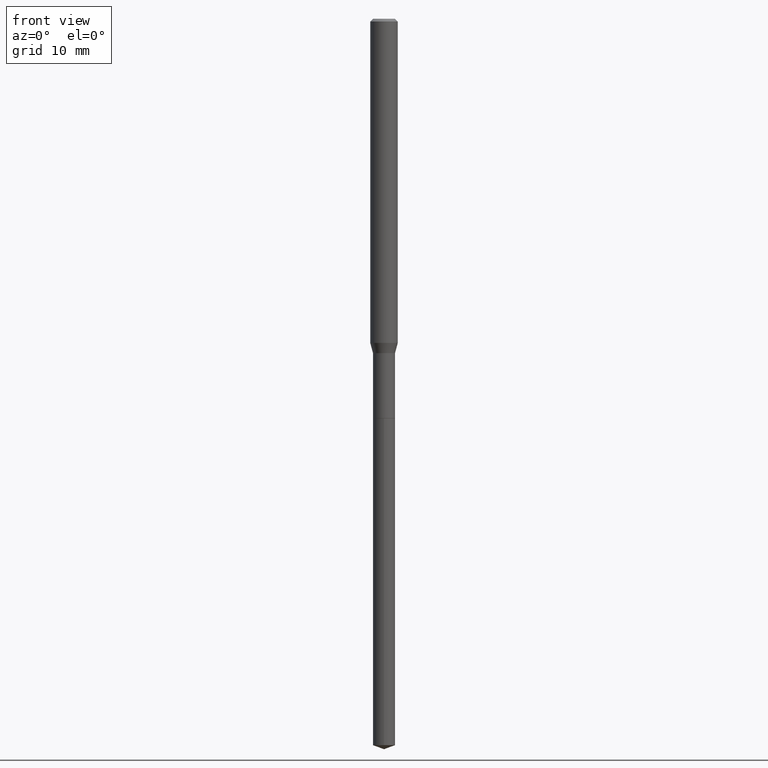
[diagram: clean part render]
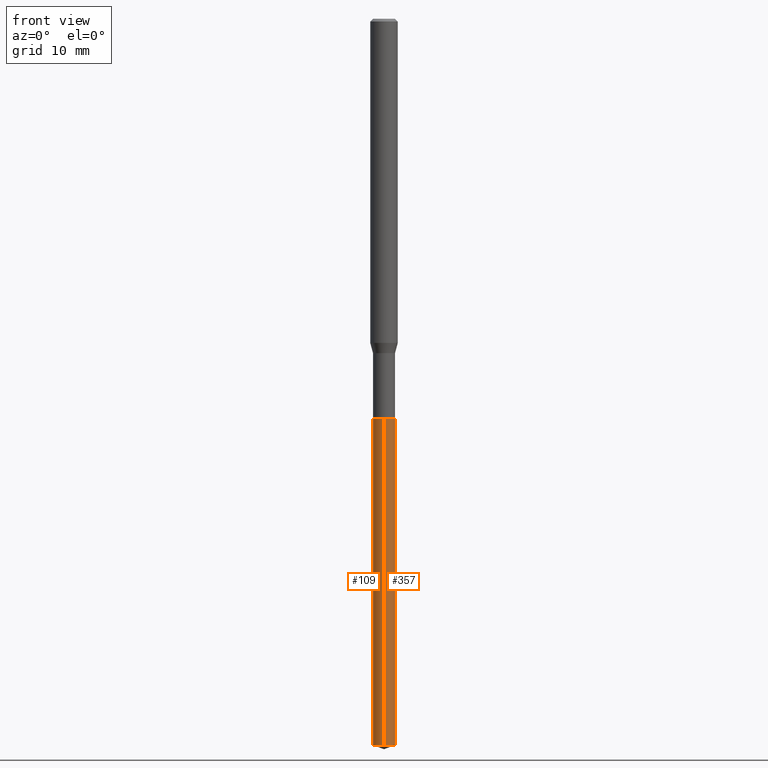
[diagram: same view with one multi-face feature highlighted, each face labeled with its STEP entity id]
A machine part, front view. The highlighted faces form ONE feature: a constant-radius fillet chain: 2 tangent blend faces with common blend radius 1.6002 mm. The faces share edges in the B-rep.
Their STEP definitions:
[1] entity #109 (Cylinder):
#1 = EDGE_CURVE ( 'NONE', #16, #3, #442, .T. ) ;
#3 = VERTEX_POINT ( 'NONE', #468 ) ;
#13 = VERTEX_POINT ( 'NONE', #245 ) ;
#16 = VERTEX_POINT ( 'NONE', #397 ) ;
#37 = DIRECTION ( 'NONE',  ( -6.982962677686265922E-15, -1.000000000000000000, 4.336266656609941617E-15 ) ) ;
#70 = DIRECTION ( 'NONE',  ( -2.445427878602314829E-29, 3.491539949471199656E-15, 1.000000000000000000 ) ) ;
#71 = DIRECTION ( 'NONE',  ( -2.445427878602314829E-29, 3.491539949471200051E-15, 1.000000000000000000 ) ) ;
#96 = EDGE_CURVE ( 'NONE', #3, #417, #482, .T. ) ;
#103 = AXIS2_PLACEMENT_3D ( 'NONE', #287, #70, #37 ) ;
#109 = ADVANCED_FACE ( 'NONE', ( #440 ), #290, .T. ) ;
#121 = CIRCLE ( 'NONE', #329, 0.06300000000000000044 ) ;
#145 = CARTESIAN_POINT ( 'NONE',  ( 5.583983472043140562E-29, -7.972448489114438042E-15, -2.283399999999999874 ) ) ;
#146 = DIRECTION ( 'NONE',  ( -2.445427878602314829E-29, 3.491539949471199656E-15, 1.000000000000000000 ) ) ;
#170 = ORIENTED_EDGE ( 'NONE', *, *, #374, .F. ) ;
#174 = VECTOR ( 'NONE', #71, 39.37007874015748143 ) ;
#175 = VECTOR ( 'NONE', #231, 39.37007874015748143 ) ;
#192 = LINE ( 'NONE', #486, #175 ) ;
#212 = EDGE_LOOP ( 'NONE', ( #170, #463, #458, #364 ) ) ;
#214 = DIRECTION ( 'NONE',  ( -2.445427878602314829E-29, 3.491539949471199656E-15, 1.000000000000000000 ) ) ;
#221 = EDGE_CURVE ( 'NONE', #13, #417, #121, .T. ) ;
#231 = DIRECTION ( 'NONE',  ( -2.445427878602314829E-29, 3.491539949471200051E-15, 1.000000000000000000 ) ) ;
#243 = AXIS2_PLACEMENT_3D ( 'NONE', #351, #214, #286 ) ;
#245 = CARTESIAN_POINT ( 'NONE',  ( 4.476419235289648833E-16, 0.06299999999999202072, -2.283399999999999874 ) ) ;
#286 = DIRECTION ( 'NONE',  ( -6.982962677686265922E-15, -1.000000000000000000, 0.000000000000000000 ) ) ;
#287 = CARTESIAN_POINT ( 'NONE',  ( 5.583983472043140562E-29, -7.972448489114438042E-15, -2.283399999999999874 ) ) ;
#290 = CYLINDRICAL_SURFACE ( 'NONE', #103, 0.06300000000000000044 ) ;
#295 = CARTESIAN_POINT ( 'NONE',  ( -4.399266486941789139E-16, -0.06300000000000798017, -2.283399999999999430 ) ) ;
#329 = AXIS2_PLACEMENT_3D ( 'NONE', #145, #146, #483 ) ;
#348 = CARTESIAN_POINT ( 'NONE',  ( -4.399266486941789139E-16, -0.06300000000000798017, -2.283399999999999430 ) ) ;
#351 = CARTESIAN_POINT ( 'NONE',  ( 1.014927911068086935E-28, -1.449069923898350570E-14, -4.150269875241229478 ) ) ;
#364 = ORIENTED_EDGE ( 'NONE', *, *, #221, .F. ) ;
#374 = EDGE_CURVE ( 'NONE', #16, #13, #192, .T. ) ;
#397 = CARTESIAN_POINT ( 'NONE',  ( 4.476419235289643903E-16, 0.06299999999998549816, -4.150269875241229478 ) ) ;
#417 = VERTEX_POINT ( 'NONE', #348 ) ;
#440 = FACE_OUTER_BOUND ( 'NONE', #212, .T. ) ;
#442 = CIRCLE ( 'NONE', #243, 0.06300000000000000044 ) ;
#458 = ORIENTED_EDGE ( 'NONE', *, *, #96, .T. ) ;
#463 = ORIENTED_EDGE ( 'NONE', *, *, #1, .T. ) ;
#468 = CARTESIAN_POINT ( 'NONE',  ( -4.399266486941331107E-16, -0.06300000000001446110, -4.150269875241229478 ) ) ;
#482 = LINE ( 'NONE', #295, #174 ) ;
#483 = DIRECTION ( 'NONE',  ( -6.982962677686265922E-15, -1.000000000000000000, 4.336266656609941617E-15 ) ) ;
#486 = CARTESIAN_POINT ( 'NONE',  ( 4.476419235289189322E-16, 0.06299999999999202072, -2.283399999999999874 ) ) ;
[2] entity #357 (Cylinder):
#2 = DIRECTION ( 'NONE',  ( -2.445427878602314829E-29, 3.491539949471199656E-15, 1.000000000000000000 ) ) ;
#3 = VERTEX_POINT ( 'NONE', #468 ) ;
#13 = VERTEX_POINT ( 'NONE', #245 ) ;
#14 = CIRCLE ( 'NONE', #282, 0.06300000000000000044 ) ;
#16 = VERTEX_POINT ( 'NONE', #397 ) ;
#68 = EDGE_CURVE ( 'NONE', #417, #13, #464, .T. ) ;
#71 = DIRECTION ( 'NONE',  ( -2.445427878602314829E-29, 3.491539949471200051E-15, 1.000000000000000000 ) ) ;
#79 = ORIENTED_EDGE ( 'NONE', *, *, #96, .F. ) ;
#87 = CARTESIAN_POINT ( 'NONE',  ( 5.583983472043140562E-29, -7.972448489114438042E-15, -2.283399999999999874 ) ) ;
#96 = EDGE_CURVE ( 'NONE', #3, #417, #482, .T. ) ;
#155 = ORIENTED_EDGE ( 'NONE', *, *, #68, .F. ) ;
#174 = VECTOR ( 'NONE', #71, 39.37007874015748143 ) ;
#175 = VECTOR ( 'NONE', #231, 39.37007874015748143 ) ;
#185 = AXIS2_PLACEMENT_3D ( 'NONE', #87, #337, #302 ) ;
#190 = DIRECTION ( 'NONE',  ( -6.982962677686265922E-15, -1.000000000000000000, 0.000000000000000000 ) ) ;
#192 = LINE ( 'NONE', #486, #175 ) ;
#220 = DIRECTION ( 'NONE',  ( -6.982962677686265922E-15, -1.000000000000000000, 4.336266656609941617E-15 ) ) ;
#231 = DIRECTION ( 'NONE',  ( -2.445427878602314829E-29, 3.491539949471200051E-15, 1.000000000000000000 ) ) ;
#236 = CYLINDRICAL_SURFACE ( 'NONE', #185, 0.06300000000000000044 ) ;
#245 = CARTESIAN_POINT ( 'NONE',  ( 4.476419235289648833E-16, 0.06299999999999202072, -2.283399999999999874 ) ) ;
#281 = AXIS2_PLACEMENT_3D ( 'NONE', #326, #477, #220 ) ;
#282 = AXIS2_PLACEMENT_3D ( 'NONE', #346, #2, #190 ) ;
#295 = CARTESIAN_POINT ( 'NONE',  ( -4.399266486941789139E-16, -0.06300000000000798017, -2.283399999999999430 ) ) ;
#302 = DIRECTION ( 'NONE',  ( -6.982962677686265922E-15, -1.000000000000000000, 4.336266656609941617E-15 ) ) ;
#310 = ORIENTED_EDGE ( 'NONE', *, *, #333, .T. ) ;
#326 = CARTESIAN_POINT ( 'NONE',  ( 5.583983472043140562E-29, -7.972448489114438042E-15, -2.283399999999999874 ) ) ;
#333 = EDGE_CURVE ( 'NONE', #3, #16, #14, .T. ) ;
#337 = DIRECTION ( 'NONE',  ( -2.445427878602314829E-29, 3.491539949471199656E-15, 1.000000000000000000 ) ) ;
#346 = CARTESIAN_POINT ( 'NONE',  ( 1.014927911068086935E-28, -1.449069923898350570E-14, -4.150269875241229478 ) ) ;
#348 = CARTESIAN_POINT ( 'NONE',  ( -4.399266486941789139E-16, -0.06300000000000798017, -2.283399999999999430 ) ) ;
#356 = EDGE_LOOP ( 'NONE', ( #310, #383, #155, #79 ) ) ;
#357 = ADVANCED_FACE ( 'NONE', ( #421 ), #236, .T. ) ;
#374 = EDGE_CURVE ( 'NONE', #16, #13, #192, .T. ) ;
#383 = ORIENTED_EDGE ( 'NONE', *, *, #374, .T. ) ;
#397 = CARTESIAN_POINT ( 'NONE',  ( 4.476419235289643903E-16, 0.06299999999998549816, -4.150269875241229478 ) ) ;
#417 = VERTEX_POINT ( 'NONE', #348 ) ;
#421 = FACE_OUTER_BOUND ( 'NONE', #356, .T. ) ;
#464 = CIRCLE ( 'NONE', #281, 0.06300000000000000044 ) ;
#468 = CARTESIAN_POINT ( 'NONE',  ( -4.399266486941331107E-16, -0.06300000000001446110, -4.150269875241229478 ) ) ;
#477 = DIRECTION ( 'NONE',  ( -2.445427878602314829E-29, 3.491539949471199656E-15, 1.000000000000000000 ) ) ;
#482 = LINE ( 'NONE', #295, #174 ) ;
#486 = CARTESIAN_POINT ( 'NONE',  ( 4.476419235289189322E-16, 0.06299999999999202072, -2.283399999999999874 ) ) ;